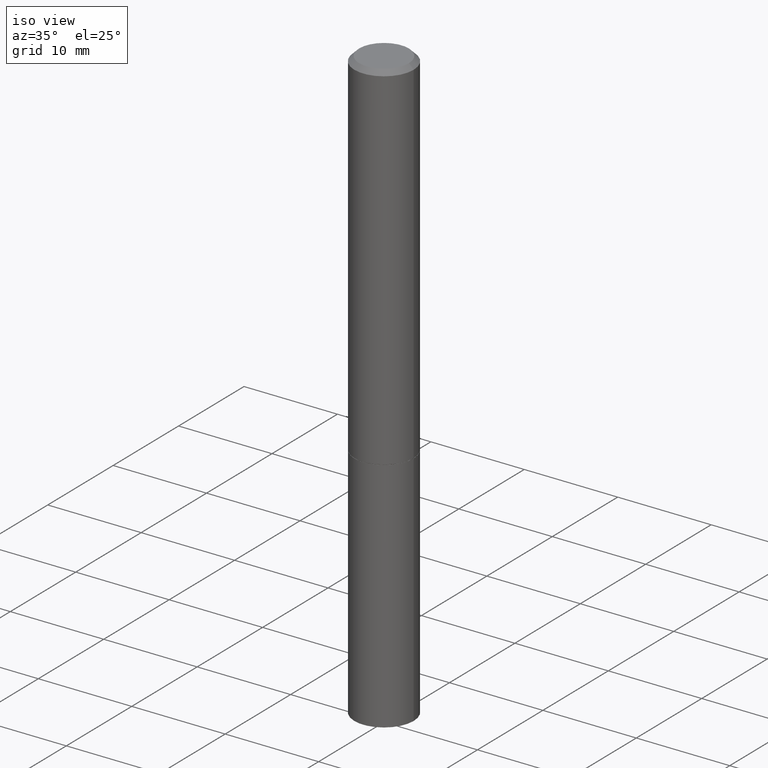
[diagram: clean part render]
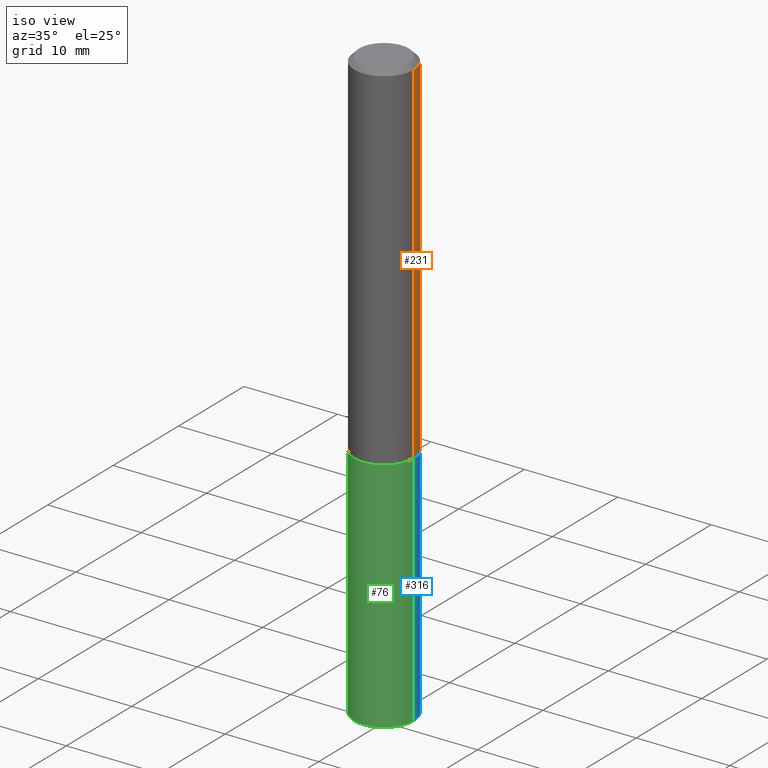
[diagram: same view with three faces highlighted in distinct colors, each labeled with its STEP entity id]
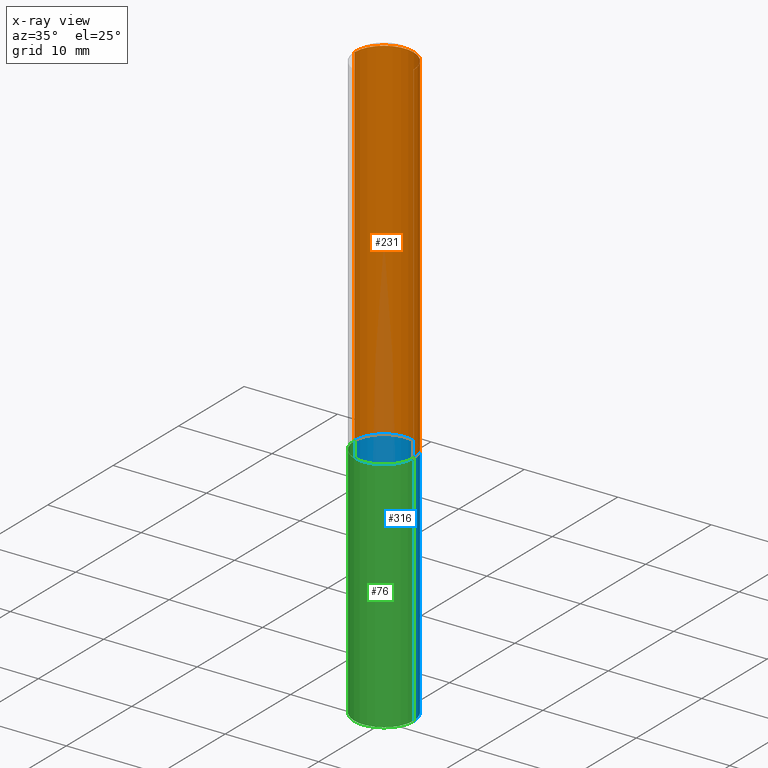
[diagram: x-ray of the same camera — body ghosted, the three highlighted faces saturated]
A machine part, iso view with three faces highlighted in distinct colors.
The next image is the same camera in x-ray (body ghosted, the three faces saturated) — at least one of them is partly hidden behind the body in this view.
Their STEP definitions:

[orange] entity #231 — the highlighted cylindrical surface (edge-blend (fillet) strip) has radius 3.175 mm, axis along (-0, 0, 1).
#12 = VERTEX_POINT ( 'NONE', #104 ) ;
#22 = CARTESIAN_POINT ( 'NONE',  ( 0.000000000000000000, 0.000000000000000000, 0.000000000000000000 ) ) ;
#23 = AXIS2_PLACEMENT_3D ( 'NONE', #143, #360, #171 ) ;
#38 = EDGE_LOOP ( 'NONE', ( #45, #270, #185, #207 ) ) ;
#45 = ORIENTED_EDGE ( 'NONE', *, *, #62, .T. ) ;
#47 = FACE_OUTER_BOUND ( 'NONE', #38, .T. ) ;
#55 = DIRECTION ( 'NONE',  ( -2.445468806185136597E-29, 3.491481338843145583E-15, 1.000000000000000000 ) ) ;
#62 = EDGE_CURVE ( 'NONE', #261, #66, #304, .T. ) ;
#66 = VERTEX_POINT ( 'NONE', #356 ) ;
#68 = LINE ( 'NONE', #363, #133 ) ;
#104 = CARTESIAN_POINT ( 'NONE',  ( 0.1249999999999997780, -9.273918764983029686E-16, -0.02000000000000004552 ) ) ;
#118 = AXIS2_PLACEMENT_3D ( 'NONE', #22, #302, #351 ) ;
#123 = CIRCLE ( 'NONE', #344, 0.1249999999999997780 ) ;
#129 = EDGE_CURVE ( 'NONE', #66, #317, #219, .T. ) ;
#133 = VECTOR ( 'NONE', #311, 39.37007874015748143 ) ;
#141 = EDGE_CURVE ( 'NONE', #261, #12, #68, .T. ) ;
#143 = CARTESIAN_POINT ( 'NONE',  ( 3.665757740471519853E-29, -5.233730526925875958E-15, -1.499000000000000110 ) ) ;
#144 = CARTESIAN_POINT ( 'NONE',  ( -0.1249999999999999029, 8.881784197001245421E-16, -6.148668862818627323E-30 ) ) ;
#169 = CARTESIAN_POINT ( 'NONE',  ( 4.890937612370284544E-31, -6.982962677686307633E-17, -0.02000000000000004552 ) ) ;
#170 = DIRECTION ( 'NONE',  ( 1.000000000000000000, -6.982962677686266711E-15, 0.000000000000000000 ) ) ;
#171 = DIRECTION ( 'NONE',  ( 1.000000000000000000, -6.982962677686262766E-15, 0.000000000000000000 ) ) ;
#180 = VECTOR ( 'NONE', #200, 39.37007874015748143 ) ;
#185 = ORIENTED_EDGE ( 'NONE', *, *, #324, .F. ) ;
#200 = DIRECTION ( 'NONE',  ( -2.445468806185136877E-29, 3.491481338843145188E-15, 1.000000000000000000 ) ) ;
#207 = ORIENTED_EDGE ( 'NONE', *, *, #141, .F. ) ;
#218 = CARTESIAN_POINT ( 'NONE',  ( -0.1249999999999997780, 8.030407079339186601E-16, -0.02000000000000004552 ) ) ;
#219 = LINE ( 'NONE', #144, #180 ) ;
#231 = ADVANCED_FACE ( 'NONE', ( #47 ), #247, .T. ) ;
#247 = CYLINDRICAL_SURFACE ( 'NONE', #118, 0.1249999999999999029 ) ;
#261 = VERTEX_POINT ( 'NONE', #327 ) ;
#270 = ORIENTED_EDGE ( 'NONE', *, *, #129, .T. ) ;
#302 = DIRECTION ( 'NONE',  ( -2.445468806185136597E-29, 3.491481338843145583E-15, 1.000000000000000000 ) ) ;
#304 = CIRCLE ( 'NONE', #23, 0.1250000000000000000 ) ;
#311 = DIRECTION ( 'NONE',  ( -2.445468806185136877E-29, 3.491481338843145188E-15, 1.000000000000000000 ) ) ;
#317 = VERTEX_POINT ( 'NONE', #218 ) ;
#324 = EDGE_CURVE ( 'NONE', #12, #317, #123, .T. ) ;
#327 = CARTESIAN_POINT ( 'NONE',  ( 0.1250000000000000000, -6.106600861636658508E-15, -1.499000000000000110 ) ) ;
#344 = AXIS2_PLACEMENT_3D ( 'NONE', #169, #55, #170 ) ;
#351 = DIRECTION ( 'NONE',  ( 1.000000000000000000, -6.982962677686266711E-15, 4.876176775795935793E-29 ) ) ;
#356 = CARTESIAN_POINT ( 'NONE',  ( -0.1250000000000000278, -1.763601657151242227E-15, -1.499000000000000110 ) ) ;
#360 = DIRECTION ( 'NONE',  ( -2.445468806185136597E-29, 3.491481338843145583E-15, 1.000000000000000000 ) ) ;
#363 = CARTESIAN_POINT ( 'NONE',  ( 0.1249999999999999029, -8.728703347107826486E-16, 6.095220969744914837E-30 ) ) ;

[blue] entity #316 — the highlighted cylindrical surface (edge-blend (fillet) strip) has radius 3.175 mm, axis along (-0, 0, 1).
#7 = VECTOR ( 'NONE', #357, 39.37007874015748143 ) ;
#19 = DIRECTION ( 'NONE',  ( 1.000000000000000000, -6.982962677686266711E-15, 4.876176775795935793E-29 ) ) ;
#20 = CARTESIAN_POINT ( 'NONE',  ( 0.1250000000000000000, -6.110092342975501516E-15, -1.500000000000000222 ) ) ;
#24 = CARTESIAN_POINT ( 'NONE',  ( 0.000000000000000000, 0.000000000000000000, 0.000000000000000000 ) ) ;
#39 = VERTEX_POINT ( 'NONE', #303 ) ;
#51 = EDGE_CURVE ( 'NONE', #131, #39, #275, .T. ) ;
#64 = CARTESIAN_POINT ( 'NONE',  ( -0.1250000000000000000, 8.881784197001252323E-16, -6.148668862818632227E-30 ) ) ;
#70 = AXIS2_PLACEMENT_3D ( 'NONE', #84, #276, #89 ) ;
#81 = LINE ( 'NONE', #271, #7 ) ;
#82 = ORIENTED_EDGE ( 'NONE', *, *, #51, .T. ) ;
#84 = CARTESIAN_POINT ( 'NONE',  ( 3.668203209277704895E-29, -5.237222008264718177E-15, -1.500000000000000222 ) ) ;
#89 = DIRECTION ( 'NONE',  ( 1.000000000000000000, -6.982962677686262766E-15, 0.000000000000000000 ) ) ;
#90 = CARTESIAN_POINT ( 'NONE',  ( 6.113672015462842613E-29, -8.728703347107864943E-15, -2.500000000000000000 ) ) ;
#99 = CARTESIAN_POINT ( 'NONE',  ( 0.1250000000000000000, -9.601573681818648281E-15, -2.500000000000000000 ) ) ;
#108 = VERTEX_POINT ( 'NONE', #20 ) ;
#109 = CYLINDRICAL_SURFACE ( 'NONE', #353, 0.1250000000000000000 ) ;
#119 = LINE ( 'NONE', #64, #269 ) ;
#131 = VERTEX_POINT ( 'NONE', #99 ) ;
#146 = EDGE_LOOP ( 'NONE', ( #82, #322, #289, #288 ) ) ;
#159 = EDGE_CURVE ( 'NONE', #39, #293, #119, .T. ) ;
#165 = CARTESIAN_POINT ( 'NONE',  ( -0.1250000000000000000, -6.094784257986165933E-15, -1.500000000000000222 ) ) ;
#166 = DIRECTION ( 'NONE',  ( 1.000000000000000000, -6.982962677686270655E-15, 0.000000000000000000 ) ) ;
#167 = DIRECTION ( 'NONE',  ( -2.445468806185136597E-29, 3.491481338843145583E-15, 1.000000000000000000 ) ) ;
#175 = DIRECTION ( 'NONE',  ( -2.445468806185136877E-29, 3.491481338843145188E-15, 1.000000000000000000 ) ) ;
#197 = CIRCLE ( 'NONE', #70, 0.1250000000000000000 ) ;
#244 = FACE_OUTER_BOUND ( 'NONE', #146, .T. ) ;
#269 = VECTOR ( 'NONE', #175, 39.37007874015748143 ) ;
#271 = CARTESIAN_POINT ( 'NONE',  ( 0.1250000000000000000, -8.728703347107833388E-16, 6.095220969744919741E-30 ) ) ;
#275 = CIRCLE ( 'NONE', #296, 0.1250000000000000000 ) ;
#276 = DIRECTION ( 'NONE',  ( -2.445468806185136597E-29, 3.491481338843145583E-15, 1.000000000000000000 ) ) ;
#288 = ORIENTED_EDGE ( 'NONE', *, *, #308, .F. ) ;
#289 = ORIENTED_EDGE ( 'NONE', *, *, #350, .F. ) ;
#293 = VERTEX_POINT ( 'NONE', #165 ) ;
#296 = AXIS2_PLACEMENT_3D ( 'NONE', #90, #167, #166 ) ;
#303 = CARTESIAN_POINT ( 'NONE',  ( -0.1250000000000000000, -6.094784257986165933E-15, -2.500000000000000000 ) ) ;
#308 = EDGE_CURVE ( 'NONE', #131, #108, #81, .T. ) ;
#316 = ADVANCED_FACE ( 'NONE', ( #244 ), #109, .T. ) ;
#322 = ORIENTED_EDGE ( 'NONE', *, *, #159, .T. ) ;
#326 = DIRECTION ( 'NONE',  ( -2.445468806185136597E-29, 3.491481338843145583E-15, 1.000000000000000000 ) ) ;
#350 = EDGE_CURVE ( 'NONE', #108, #293, #197, .T. ) ;
#353 = AXIS2_PLACEMENT_3D ( 'NONE', #24, #326, #19 ) ;
#357 = DIRECTION ( 'NONE',  ( -2.445468806185136877E-29, 3.491481338843145188E-15, 1.000000000000000000 ) ) ;

[green] entity #76 — the highlighted cylindrical surface (edge-blend (fillet) strip) has radius 3.175 mm, axis along (-0, 0, 1).
#4 = EDGE_CURVE ( 'NONE', #39, #131, #83, .T. ) ;
#7 = VECTOR ( 'NONE', #357, 39.37007874015748143 ) ;
#20 = CARTESIAN_POINT ( 'NONE',  ( 0.1250000000000000000, -6.110092342975501516E-15, -1.500000000000000222 ) ) ;
#39 = VERTEX_POINT ( 'NONE', #303 ) ;
#40 = ORIENTED_EDGE ( 'NONE', *, *, #4, .T. ) ;
#64 = CARTESIAN_POINT ( 'NONE',  ( -0.1250000000000000000, 8.881784197001252323E-16, -6.148668862818632227E-30 ) ) ;
#76 = ADVANCED_FACE ( 'NONE', ( #215 ), #198, .T. ) ;
#81 = LINE ( 'NONE', #271, #7 ) ;
#83 = CIRCLE ( 'NONE', #359, 0.1250000000000000000 ) ;
#85 = DIRECTION ( 'NONE',  ( 1.000000000000000000, -6.982962677686262766E-15, 0.000000000000000000 ) ) ;
#99 = CARTESIAN_POINT ( 'NONE',  ( 0.1250000000000000000, -9.601573681818648281E-15, -2.500000000000000000 ) ) ;
#108 = VERTEX_POINT ( 'NONE', #20 ) ;
#116 = CARTESIAN_POINT ( 'NONE',  ( 0.000000000000000000, 0.000000000000000000, 0.000000000000000000 ) ) ;
#119 = LINE ( 'NONE', #64, #269 ) ;
#120 = EDGE_CURVE ( 'NONE', #293, #108, #149, .T. ) ;
#130 = CARTESIAN_POINT ( 'NONE',  ( 6.113672015462842613E-29, -8.728703347107864943E-15, -2.500000000000000000 ) ) ;
#131 = VERTEX_POINT ( 'NONE', #99 ) ;
#136 = CARTESIAN_POINT ( 'NONE',  ( 3.668203209277704895E-29, -5.237222008264718177E-15, -1.500000000000000222 ) ) ;
#149 = CIRCLE ( 'NONE', #352, 0.1250000000000000000 ) ;
#156 = ORIENTED_EDGE ( 'NONE', *, *, #120, .F. ) ;
#159 = EDGE_CURVE ( 'NONE', #39, #293, #119, .T. ) ;
#165 = CARTESIAN_POINT ( 'NONE',  ( -0.1250000000000000000, -6.094784257986165933E-15, -1.500000000000000222 ) ) ;
#175 = DIRECTION ( 'NONE',  ( -2.445468806185136877E-29, 3.491481338843145188E-15, 1.000000000000000000 ) ) ;
#195 = DIRECTION ( 'NONE',  ( -2.445468806185136597E-29, 3.491481338843145583E-15, 1.000000000000000000 ) ) ;
#198 = CYLINDRICAL_SURFACE ( 'NONE', #237, 0.1250000000000000000 ) ;
#206 = DIRECTION ( 'NONE',  ( -2.445468806185136597E-29, 3.491481338843145583E-15, 1.000000000000000000 ) ) ;
#212 = ORIENTED_EDGE ( 'NONE', *, *, #308, .T. ) ;
#215 = FACE_OUTER_BOUND ( 'NONE', #283, .T. ) ;
#237 = AXIS2_PLACEMENT_3D ( 'NONE', #116, #195, #358 ) ;
#240 = DIRECTION ( 'NONE',  ( 1.000000000000000000, -6.982962677686270655E-15, 0.000000000000000000 ) ) ;
#264 = ORIENTED_EDGE ( 'NONE', *, *, #159, .F. ) ;
#269 = VECTOR ( 'NONE', #175, 39.37007874015748143 ) ;
#271 = CARTESIAN_POINT ( 'NONE',  ( 0.1250000000000000000, -8.728703347107833388E-16, 6.095220969744919741E-30 ) ) ;
#283 = EDGE_LOOP ( 'NONE', ( #264, #40, #212, #156 ) ) ;
#293 = VERTEX_POINT ( 'NONE', #165 ) ;
#303 = CARTESIAN_POINT ( 'NONE',  ( -0.1250000000000000000, -6.094784257986165933E-15, -2.500000000000000000 ) ) ;
#308 = EDGE_CURVE ( 'NONE', #131, #108, #81, .T. ) ;
#349 = DIRECTION ( 'NONE',  ( -2.445468806185136597E-29, 3.491481338843145583E-15, 1.000000000000000000 ) ) ;
#352 = AXIS2_PLACEMENT_3D ( 'NONE', #136, #349, #85 ) ;
#357 = DIRECTION ( 'NONE',  ( -2.445468806185136877E-29, 3.491481338843145188E-15, 1.000000000000000000 ) ) ;
#358 = DIRECTION ( 'NONE',  ( 1.000000000000000000, -6.982962677686266711E-15, 4.876176775795935793E-29 ) ) ;
#359 = AXIS2_PLACEMENT_3D ( 'NONE', #130, #206, #240 ) ;